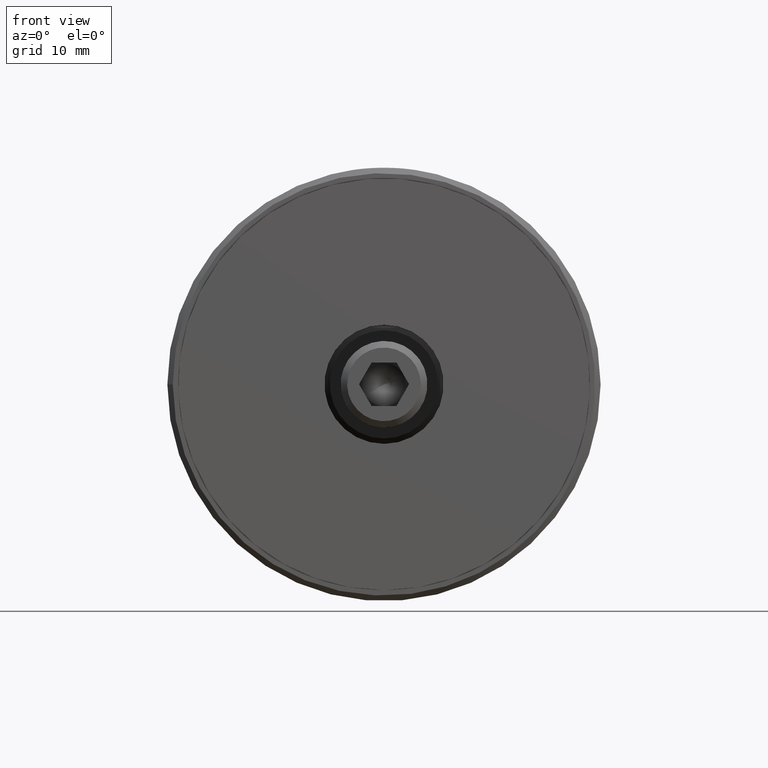
[diagram: clean part render]
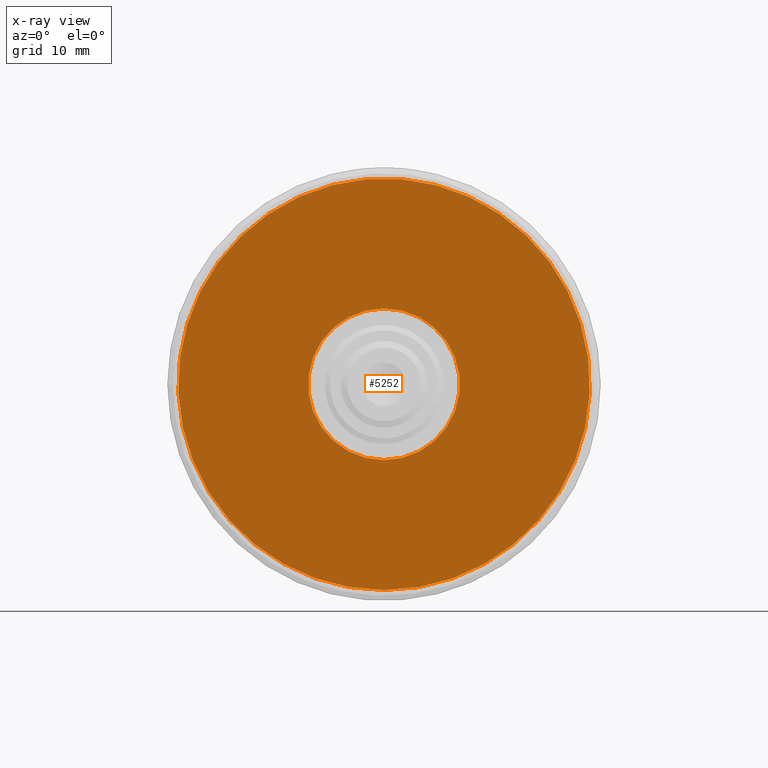
[diagram: x-ray — body ghosted, one internal face saturated and labeled with its STEP entity id]
A machine part, front view, then the same camera in x-ray: the body is ghosted and one INTERNAL B-rep face — a face not visible from any outside direction — is saturated and labeled: STEP entity #5252.
In plain terms, the highlighted planar face has unit normal (-0, 1, -0).
Its self-contained STEP definition (entity closure, byte-faithful):
#205 = CARTESIAN_POINT ( 'NONE',  ( -4.116398853145855496E-77, 1.321928043493921718E-45, -7.000000000000119016 ) ) ;
#477 = CIRCLE ( 'NONE', #725, 7.000000000000119016 ) ;
#725 = AXIS2_PLACEMENT_3D ( 'NONE', #5682, #11049, #4575 ) ;
#921 = DIRECTION ( 'NONE',  ( -5.880569790208264730E-78, 1.888468633562713363E-46, -1.000000000000000000 ) ) ;
#1545 = ORIENTED_EDGE ( 'NONE', *, *, #13199, .T. ) ;
#2332 = CARTESIAN_POINT ( 'NONE',  ( 0.000000000000000000, 0.000000000000000000, 0.000000000000000000 ) ) ;
#2599 = CARTESIAN_POINT ( 'NONE',  ( -1.117308260139587212E-76, 3.588090403769209336E-45, -19.00000000000028777 ) ) ;
#4468 = DIRECTION ( 'NONE',  ( -3.489561605496402237E-47, -1.000000000000000000, 1.861099522931397672E-46 ) ) ;
#4545 = ORIENTED_EDGE ( 'NONE', *, *, #8353, .T. ) ;
#4575 = DIRECTION ( 'NONE',  ( -5.880569790208264730E-78, 1.888468633562713363E-46, -1.000000000000000000 ) ) ;
#4737 = AXIS2_PLACEMENT_3D ( 'NONE', #2332, #4468, #11885 ) ;
#5090 = PLANE ( 'NONE',  #9648 ) ;
#5252 = ADVANCED_FACE ( 'NONE', ( #8453, #6442 ), #5090, .T. ) ;
#5682 = CARTESIAN_POINT ( 'NONE',  ( 0.000000000000000000, 0.000000000000000000, 0.000000000000000000 ) ) ;
#6442 = FACE_OUTER_BOUND ( 'NONE', #10248, .T. ) ;
#7223 = CARTESIAN_POINT ( 'NONE',  ( 0.000000000000000000, 0.000000000000000000, 0.000000000000000000 ) ) ;
#8336 = VERTEX_POINT ( 'NONE', #2599 ) ;
#8353 = EDGE_CURVE ( 'NONE', #13430, #13430, #477, .T. ) ;
#8453 = FACE_BOUND ( 'NONE', #9783, .T. ) ;
#9648 = AXIS2_PLACEMENT_3D ( 'NONE', #7223, #13623, #921 ) ;
#9783 = EDGE_LOOP ( 'NONE', ( #4545 ) ) ;
#10248 = EDGE_LOOP ( 'NONE', ( #1545 ) ) ;
#10301 = CIRCLE ( 'NONE', #4737, 19.00000000000028777 ) ;
#11049 = DIRECTION ( 'NONE',  ( 3.489561605496402237E-47, 1.000000000000000000, -1.861099522931397672E-46 ) ) ;
#11885 = DIRECTION ( 'NONE',  ( -5.880569790208264730E-78, 1.888468633562712974E-46, -1.000000000000000000 ) ) ;
#13199 = EDGE_CURVE ( 'NONE', #8336, #8336, #10301, .T. ) ;
#13430 = VERTEX_POINT ( 'NONE', #205 ) ;
#13623 = DIRECTION ( 'NONE',  ( -3.489561605496402237E-47, -1.000000000000000000, -1.888468633562713363E-46 ) ) ;